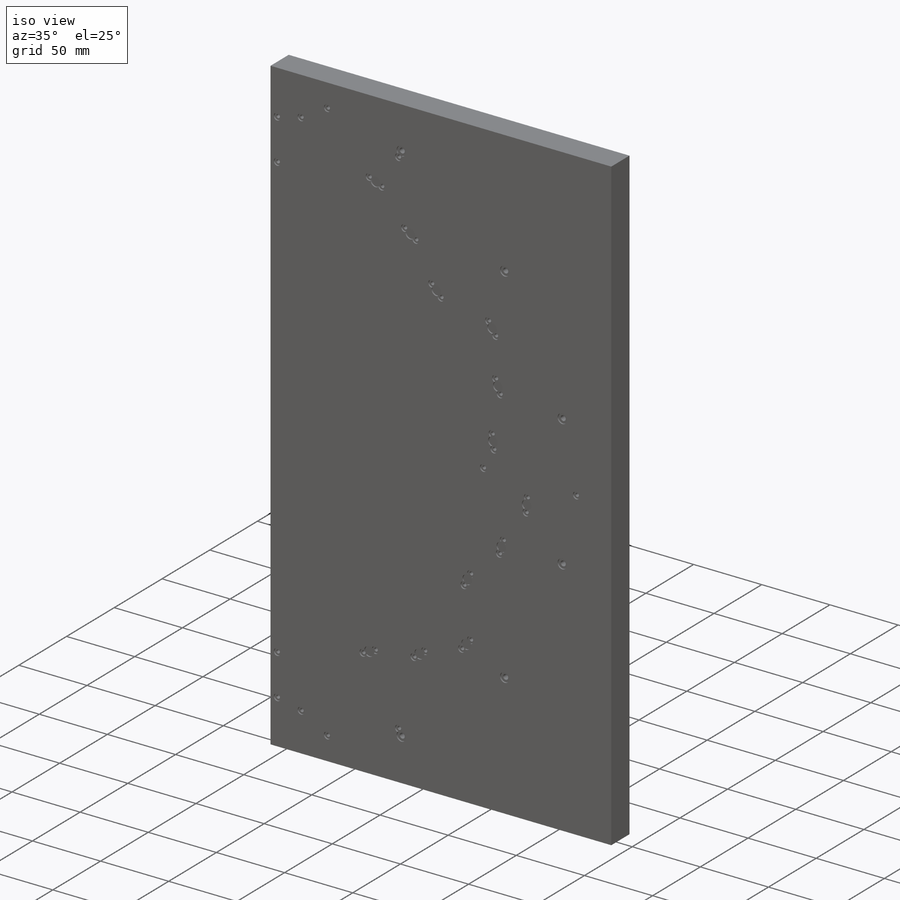
[diagram: iso view]
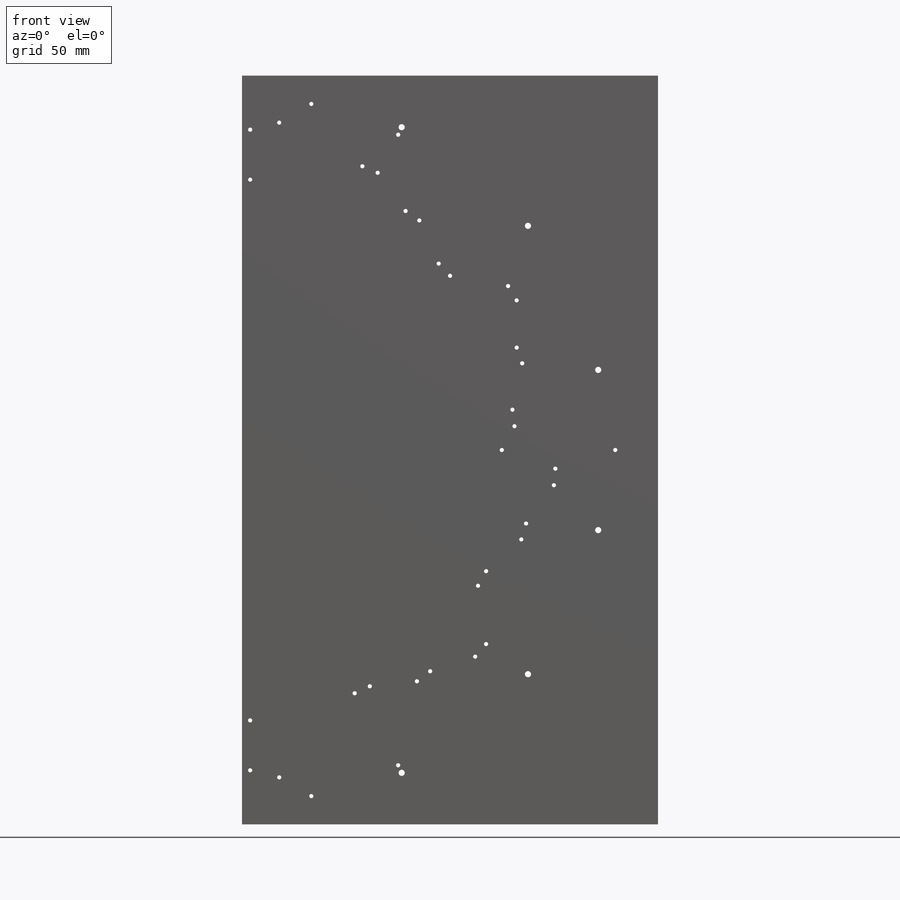
[diagram: front view]
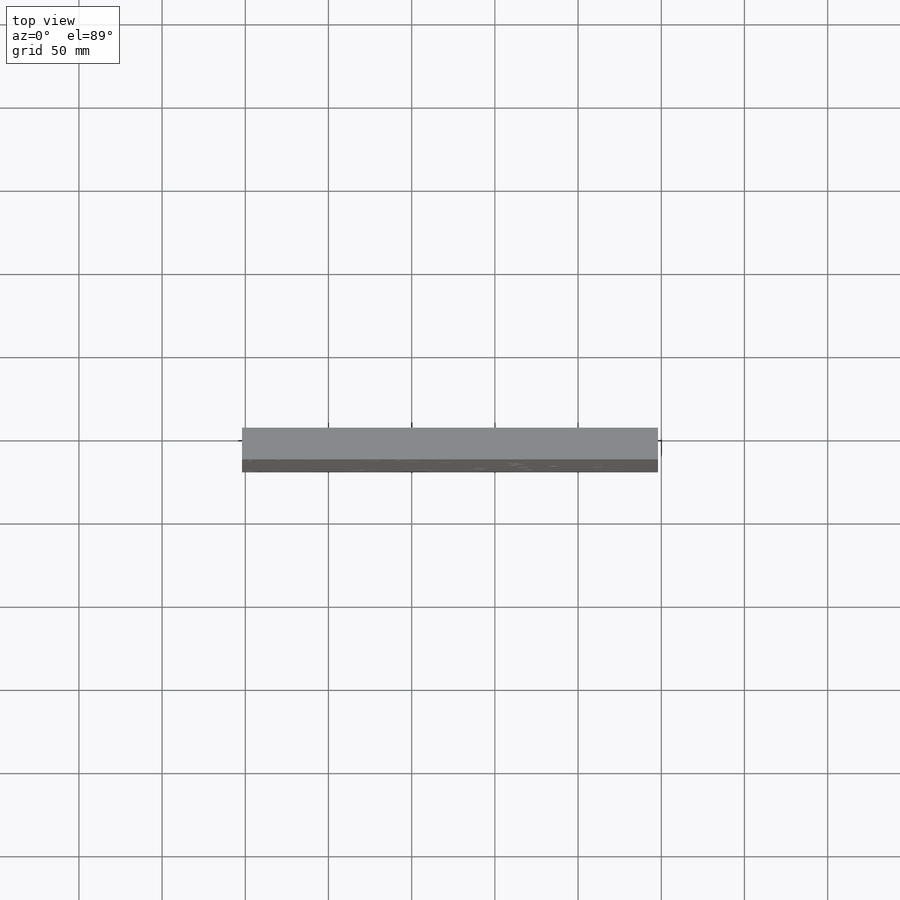
[diagram: top view]
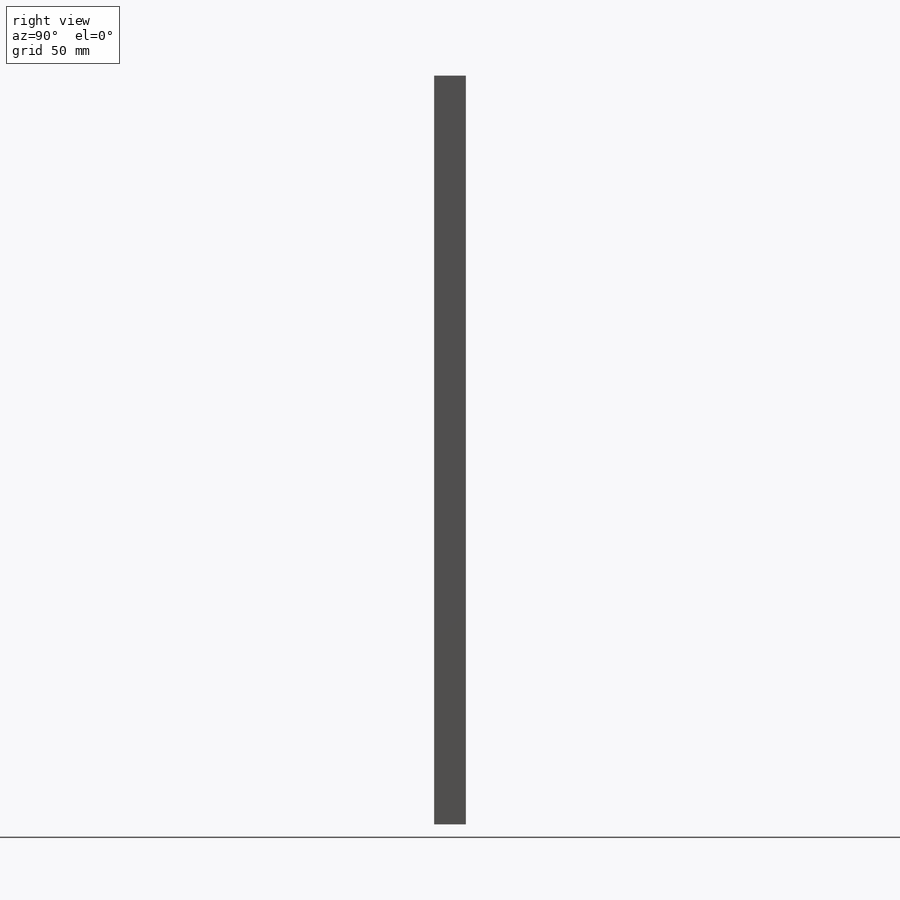
[diagram: right view]
SOLIDWORKS PART (.sldprt)
format: sldprt  version: not decoded by parser v0  size: 672,768 bytes
history: native  units: mm
features: sketch x12, hole x4, cut_extrude x2, material x1, extrude x1 + 5 further entries (+16 scaffold rows collapsed)
feature tree (41):
  scaffold x16  (default folders/planes/origin — collapsed)
  material  "Material <not specified>"
  sketch  "Sketch1"  dims[D1=250.0mm D2=450.0mm D3=10.0mm]
  extrude  "Boss-Extrude1"  Depth=19.05mm
  hole  "Ø2.5 (2.5) Diameter Hole1"  Diameter=2.5mm Depth=7mm
  sketch  "Sketch3"  dims[D1=1.25mm]
  sketch  "Sketch2"  dims[hole-wizard template sketch: 50 standard entries collapsed; hole parameters above]
  hole  "Ø3.7 (3.7) Diameter Hole1"  Diameter=3.7mm Depth=7mm
  sketch  "Sketch7"
  sketch  "Sketch6"  dims[hole-wizard template sketch: 46 standard entries collapsed; hole parameters kept: c15.Hole Dia.=3.7mm c15.Hole Depth=7.0mm c15.D3=~14.816244mm c15.Drill Angle=118.0deg]
  sketch  "Sketch8"  dims[D1=5.0mm]
  cut_extrude  "Cut-Extrude1"  Depth=1mm
  "Sketch-Pattern1"
  sketch  "Sketch9"  dims[D1=7.0mm]
  cut_extrude  "Cut-Extrude2"  [1 undecoded]
  "Sketch-Pattern2"
  sketch  "Sketch10"
  "Sketch-Pattern3"
  hole  "Ø4.0 (4) Diameter Hole3"  Diameter=4mm Depth=12mm
  sketch  "Sketch16"
  sketch  "Sketch15"  dims[hole-wizard template sketch: 47 standard entries collapsed; hole parameters kept: c15.Hole Depth=12.0mm c15.D3=~14.816244mm c15.Drill Angle=118.0deg]
  "Sketch-Pattern4"
  hole  "Ø4.0 (4) Diameter Hole4"  Diameter=4mm Depth=12mm
  sketch  "Sketch22"
  sketch  "Sketch21"  dims[hole-wizard template sketch: 47 standard entries collapsed; hole parameters kept: c15.Hole Depth=12.0mm c15.D3=~14.816244mm c15.Drill Angle=118.0deg]
  "Sketch-Pattern10"
decode coverage: 14 of 19 modeling features carry decoded parameters; 5 rows unclassified (native names shown)
note: ~ marks probable driven/reference dimensions
note: 1 parameter value undecoded
summary: Diameter pulled from absorbed wizard sketch
note: suppression state not decoded; provenance and decode notes live in map.json
